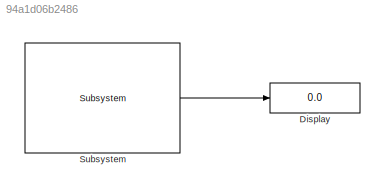
MODEL slx_94a1d06b2486
KIND model
CONFIG AbsTol = auto
CONFIG EnableMultiTasking = off
CONFIG FixedStep = auto
CONFIG MaxStep = auto
CONFIG MinStep = auto
CONFIG RelTol = 1e-3
CONFIG SampleTimeConstraint = Unconstrained
CONFIG Solver = FixedStepDiscrete
CONFIG SolverName = FixedStepDiscrete
CONFIG StartTime = 0.0
CONFIG StopTime = Inf
BLOCK [Display] Display
  Decimation = 1
  Ports = [1]
BLOCK [Reference] Subsystem  REF=rpi_blkst/Subsystem  (lib defined in mdl_5f9edbe601a8, slx_830431f926a7)
  Ports = [0, 1]
  SourceBlock = rpi_blkst/Subsystem
  SourceProductName = RPI Blockset
  SourceType = USB power reset
LINE Subsystem:1 -> Display:1
